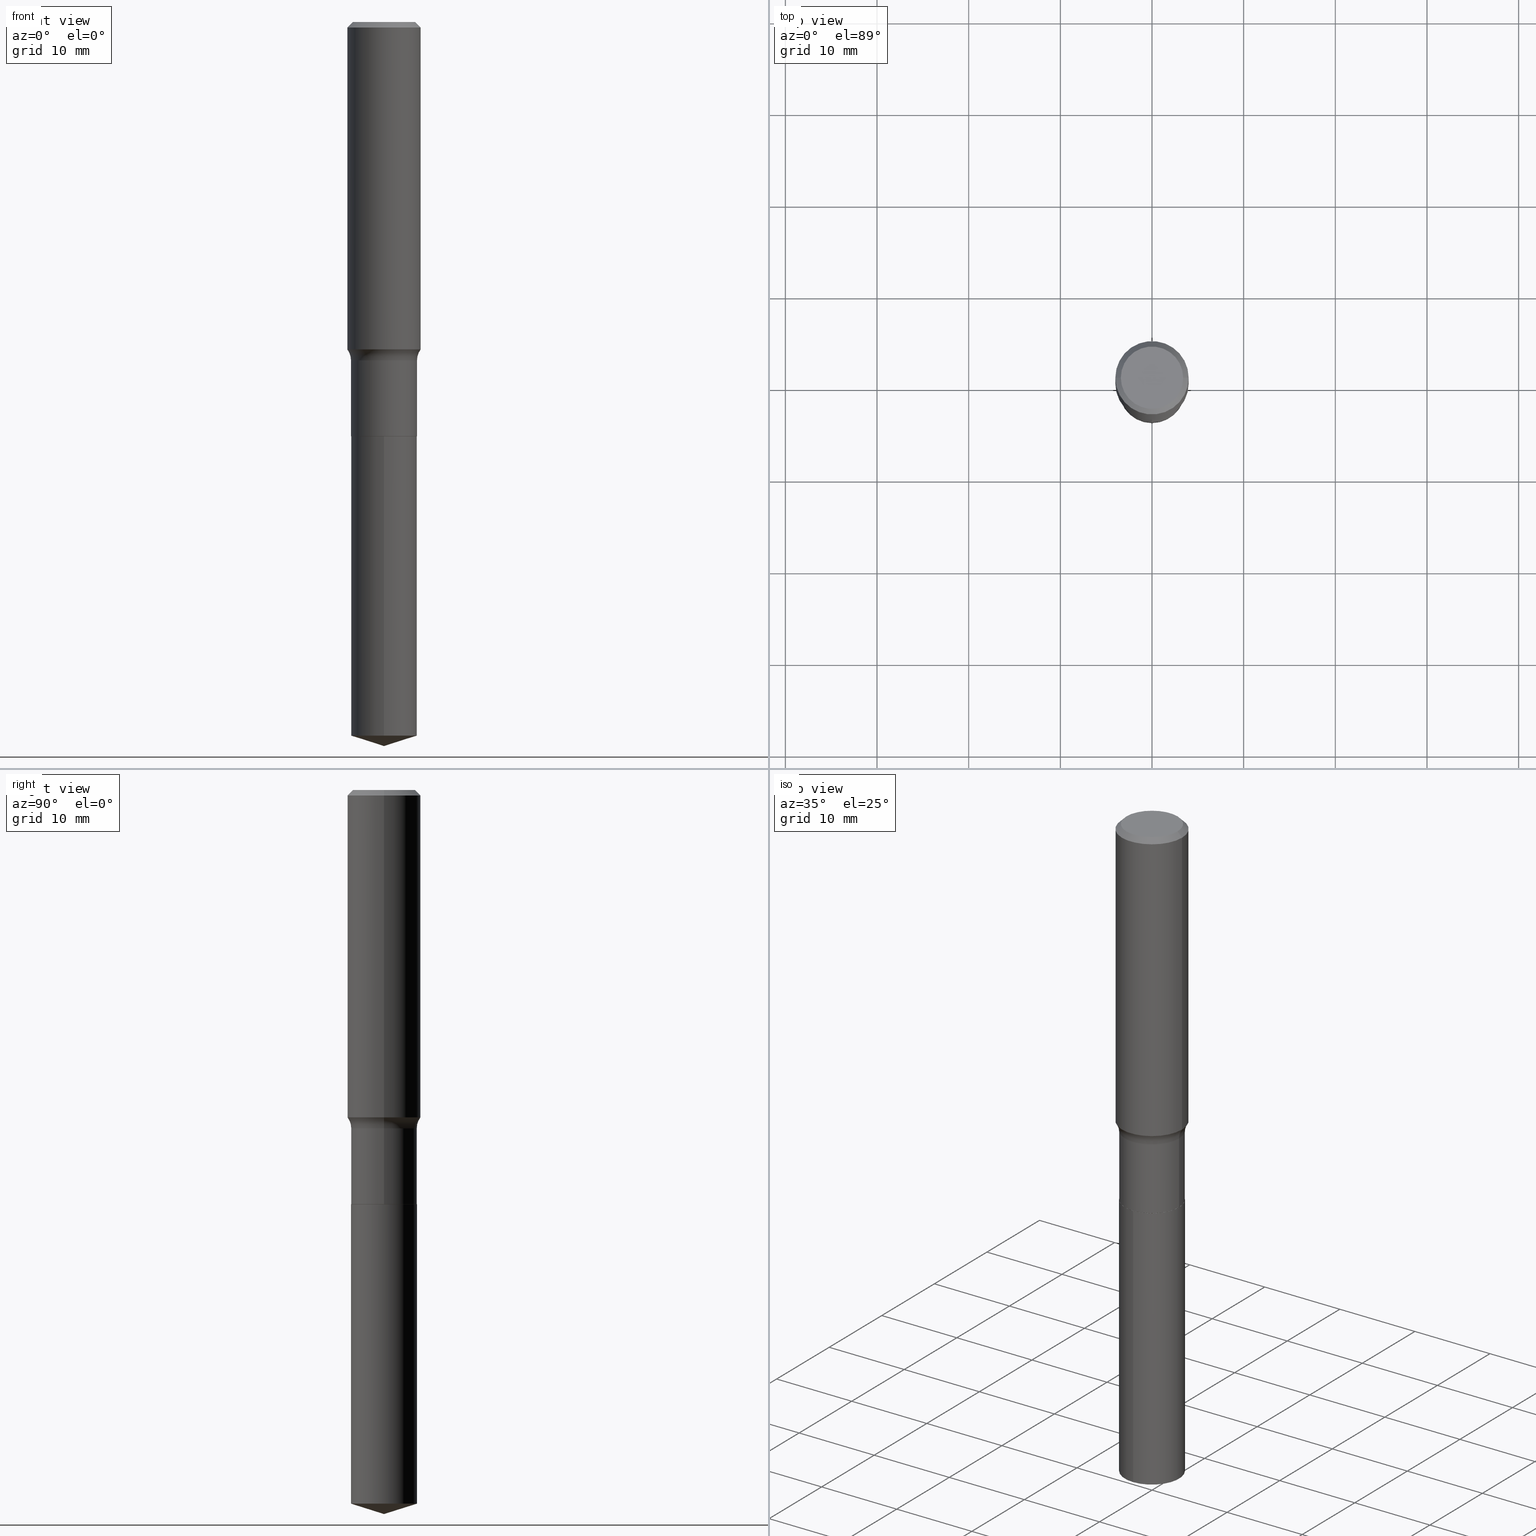
[diagram: canonical four-view strip — front | top / right | iso, engineering-drawing reading convention]
A machine part, canonical four-view strip (front | top / right | iso — engineering-drawing reading convention). The complete STEP part file that produces these views, byte-faithful:
ISO-10303-21;
HEADER;
FILE_DESCRIPTION (( 'STEP AP203' ),
    '1' );
FILE_NAME ('63761.STEP',
    '2024-04-19T15:08:15',
    ( '' ),
    ( '' ),
    'SwSTEP 2.0',
    'SolidWorks 2023',
    '' );
FILE_SCHEMA (( 'CONFIG_CONTROL_DESIGN' ));
ENDSEC;

DATA;
#1 = VERTEX_POINT ( 'NONE', #218 ) ;
#2 = FACE_OUTER_BOUND ( 'NONE', #106, .T. ) ;
#3 = VERTEX_POINT ( 'NONE', #248 ) ;
#4 = VECTOR ( 'NONE', #241, 39.37007874015748854 ) ;
#5 = CARTESIAN_POINT ( 'NONE',  ( 4.351711740606450879E-29, -6.213091042471377326E-15, -1.779499999999999860 ) ) ;
#6 = VERTEX_POINT ( 'NONE', #63 ) ;
#7 = ORIENTED_EDGE ( 'NONE', *, *, #360, .T. ) ;
#8 = PRODUCT_RELATED_PRODUCT_CATEGORY ( 'detail', '', ( #225 ) ) ;
#9 = DIRECTION ( 'NONE',  ( -1.000000000000000000, 6.982962677686265922E-15, 0.000000000000000000 ) ) ;
#10 = EDGE_CURVE ( 'NONE', #3, #379, #303, .T. ) ;
#11 = DIRECTION ( 'NONE',  ( 1.000000000000000000, -6.982962677686268288E-15, 0.000000000000000000 ) ) ;
#12 = AXIS2_PLACEMENT_3D ( 'NONE', #373, #444, #188 ) ;
#13 = ORIENTED_EDGE ( 'NONE', *, *, #88, .T. ) ;
#14 = LENGTH_MEASURE_WITH_UNIT ( LENGTH_MEASURE( 0.02539999999999999897 ), #235 );
#15 = AXIS2_PLACEMENT_3D ( 'NONE', #425, #279, #432 ) ;
#16 = SECURITY_CLASSIFICATION ( '', '', #405 ) ;
#17 = ORIENTED_EDGE ( 'NONE', *, *, #374, .F. ) ;
#18 = DIRECTION ( 'NONE',  ( -2.445468806185136597E-29, 3.491481338843145583E-15, 1.000000000000000000 ) ) ;
#19 = LINE ( 'NONE', #359, #4 ) ;
#20 = MANIFOLD_SOLID_BREP ( 'Body-Move/Copy2[1]', #136 ) ;
#21 = CARTESIAN_POINT ( 'NONE',  ( -1.002970424325033577E-46, 1.431975951230896486E-32, 4.101342130344485961E-18 ) ) ;
#22 = CIRCLE ( 'NONE', #228, 0.07800000000000002764 ) ;
#23 = PERSON_AND_ORGANIZATION ( #468, #415 ) ;
#24 =( CONVERSION_BASED_UNIT ( 'INCH', #14 ) LENGTH_UNIT ( ) NAMED_UNIT ( #71 ) );
#25 = DIRECTION ( 'NONE',  ( -2.445468806185136597E-29, 3.491481338843145583E-15, 1.000000000000000000 ) ) ;
#26 = PERSON_AND_ORGANIZATION_ROLE ( 'design_supplier' ) ;
#27 = DIRECTION ( 'NONE',  ( 1.000000000000000000, -6.982962677686270655E-15, 0.000000000000000000 ) ) ;
#28 = AXIS2_PLACEMENT_3D ( 'NONE', #170, #314, #428 ) ;
#29 = ORIENTED_EDGE ( 'NONE', *, *, #334, .T. ) ;
#30 = APPROVAL_ROLE ( '' ) ;
#31 = CARTESIAN_POINT ( 'NONE',  ( 7.605919099686368844E-29, -1.085917577814005911E-14, -3.110199999999999854 ) ) ;
#32 = ADVANCED_FACE ( 'NONE', ( #222 ), #439, .T. ) ;
#33 = APPROVAL_ROLE ( '' ) ;
#34 = CARTESIAN_POINT ( 'NONE',  ( 0.000000000000000000, 0.000000000000000000, 0.000000000000000000 ) ) ;
#35 = AXIS2_PLACEMENT_3D ( 'NONE', #65, #441, #27 ) ;
#36 = DIRECTION ( 'NONE',  ( -2.445468806185136597E-29, 3.491481338843145583E-15, 1.000000000000000000 ) ) ;
#37 = CIRCLE ( 'NONE', #315, 0.07800000000000002764 ) ;
#38 = ORIENTED_EDGE ( 'NONE', *, *, #122, .F. ) ;
#39 = CARTESIAN_POINT ( 'NONE',  ( 0.000000000000000000, 0.000000000000000000, 0.000000000000000000 ) ) ;
#40 = ORIENTED_EDGE ( 'NONE', *, *, #59, .F. ) ;
#41 = CARTESIAN_POINT ( 'NONE',  ( 1.007194327940016469E-15, 0.1417499999999892457, -3.065506396676405121 ) ) ;
#42 = CONICAL_SURFACE ( 'NONE', #412, 0.1412499999999999867, 0.7853981633978068810 ) ;
#43 = ORIENTED_EDGE ( 'NONE', *, *, #267, .T. ) ;
#44 = DIRECTION ( 'NONE',  ( -2.445468806185136597E-29, 3.491481338843145583E-15, 1.000000000000000000 ) ) ;
#45 = ADVANCED_FACE ( 'NONE', ( #375 ), #403, .F. ) ;
#46 = ORIENTED_EDGE ( 'NONE', *, *, #105, .F. ) ;
#47 = CIRCLE ( 'NONE', #199, 0.1338749999999999940 ) ;
#48 = CARTESIAN_POINT ( 'NONE',  ( 7.605754411510306594E-29, -1.085940957089515633E-14, -3.110199999999999854 ) ) ;
#49 = APPROVAL_PERSON_ORGANIZATION ( #23, #292, #30 ) ;
#50 = EDGE_LOOP ( 'NONE', ( #43, #29 ) ) ;
#51 = ADVANCED_FACE ( 'NONE', ( #69 ), #448, .F. ) ;
#52 = LINE ( 'NONE', #236, #233 ) ;
#53 = FACE_OUTER_BOUND ( 'NONE', #298, .T. ) ;
#54 = CYLINDRICAL_SURFACE ( 'NONE', #397, 0.1417499999999999594 ) ;
#55 = CIRCLE ( 'NONE', #237, 0.1575000000000000011 ) ;
#56 = CARTESIAN_POINT ( 'NONE',  ( 3.439553501887494675E-29, -4.910770824562959789E-15, -1.406500664898319819 ) ) ;
#57 = CARTESIAN_POINT ( 'NONE',  ( -0.1575000000000001676, -3.791666015740801396E-15, -1.406500664898319819 ) ) ;
#58 = VECTOR ( 'NONE', #153, 39.37007874015748143 ) ;
#59 = EDGE_CURVE ( 'NONE', #260, #270, #101, .T. ) ;
#60 =( NAMED_UNIT ( * ) PLANE_ANGLE_UNIT ( ) SI_UNIT ( $, .RADIAN. ) );
#61 = APPROVAL_PERSON_ORGANIZATION ( #295, #189, #331 ) ;
#62 = APPROVAL_STATUS ( 'not_yet_approved' ) ;
#63 = CARTESIAN_POINT ( 'NONE',  ( 0.1417499999999999594, -6.064703085570540056E-15, -1.453500000000000014 ) ) ;
#64 = EDGE_LOOP ( 'NONE', ( #38, #420 ) ) ;
#65 = CARTESIAN_POINT ( 'NONE',  ( 4.351711740606449758E-29, -6.213091042471375748E-15, -1.779499999999999638 ) ) ;
#66 = ORIENTED_EDGE ( 'NONE', *, *, #131, .T. ) ;
#67 = CALENDAR_DATE ( 2024, 19, 4 ) ;
#68 = CC_DESIGN_PERSON_AND_ORGANIZATION_ASSIGNMENT ( #474, #446, ( #238 ) ) ;
#69 = FACE_OUTER_BOUND ( 'NONE', #344, .T. ) ;
#70 = COORDINATED_UNIVERSAL_TIME_OFFSET ( 5, 0, .BEHIND. ) ;
#71 = DIMENSIONAL_EXPONENTS ( 1.000000000000000000, 0.000000000000000000, 0.000000000000000000, 0.000000000000000000, 0.000000000000000000, 0.000000000000000000, 0.000000000000000000 ) ;
#72 = CARTESIAN_POINT ( 'NONE',  ( 4.351711740606449758E-29, -6.213091042471375748E-15, -1.779499999999999638 ) ) ;
#73 = LINE ( 'NONE', #337, #364 ) ;
#74 = VECTOR ( 'NONE', #224, 39.37007874015748143 ) ;
#75 = DIRECTION ( 'NONE',  ( 1.000000000000000000, -6.982962677686266711E-15, 4.876176775795935793E-29 ) ) ;
#76 = APPROVAL_PERSON_ORGANIZATION ( #328, #99, #33 ) ;
#77 = ORIENTED_EDGE ( 'NONE', *, *, #255, .F. ) ;
#78 = DIRECTION ( 'NONE',  ( 1.000000000000000000, -6.982962677686266711E-15, 4.876170806578254279E-29 ) ) ;
#79 = ORIENTED_EDGE ( 'NONE', *, *, #430, .T. ) ;
#80 = CARTESIAN_POINT ( 'NONE',  ( 4.351711740606450879E-29, -6.213091042471377326E-15, -1.779499999999999860 ) ) ;
#81 = DIRECTION ( 'NONE',  ( -6.982962677686266711E-15, -1.000000000000000000, 3.500519750498693388E-15 ) ) ;
#82 = EDGE_CURVE ( 'NONE', #326, #318, #150, .T. ) ;
#83 = ORIENTED_EDGE ( 'NONE', *, *, #300, .F. ) ;
#84 = AXIS2_PLACEMENT_3D ( 'NONE', #306, #126, #197 ) ;
#85 = DIRECTION ( 'NONE',  ( -6.982962677686265133E-15, -1.000000000000000000, 3.854459250319948630E-15 ) ) ;
#86 = ORIENTED_EDGE ( 'NONE', *, *, #59, .T. ) ;
#87 = DIRECTION ( 'NONE',  ( 1.000000000000000000, -6.982962677686268288E-15, 0.000000000000000000 ) ) ;
#88 = EDGE_CURVE ( 'NONE', #379, #264, #293, .T. ) ;
#89 = VECTOR ( 'NONE', #179, 39.37007874015748143 ) ;
#90 = DIRECTION ( 'NONE',  ( -2.445468806185136597E-29, 3.491481338843145583E-15, 1.000000000000000000 ) ) ;
#91 = DIRECTION ( 'NONE',  ( 1.000000000000000000, -6.982962677686265922E-15, 0.000000000000000000 ) ) ;
#92 = CIRCLE ( 'NONE', #307, 0.1417499999999999594 ) ;
#93 = CARTESIAN_POINT ( 'NONE',  ( -9.898349595619846349E-16, -0.1417500000000062044, -1.779499999999999416 ) ) ;
#94 = ADVANCED_FACE ( 'NONE', ( #184 ), #214, .T. ) ;
#95 = VERTEX_POINT ( 'NONE', #256 ) ;
#96 = ORIENTED_EDGE ( 'NONE', *, *, #244, .F. ) ;
#97 = DIRECTION ( 'NONE',  ( -6.982962677686266711E-15, -1.000000000000000000, 3.491481338843145583E-15 ) ) ;
#98 = AXIS2_PLACEMENT_3D ( 'NONE', #329, #475, #144 ) ;
#99 = APPROVAL ( #62, 'UNSPECIFIED' ) ;
#100 = DESIGN_CONTEXT ( 'detailed design', #213, 'design' ) ;
#101 = LINE ( 'NONE', #31, #74 ) ;
#102 = VECTOR ( 'NONE', #319, 39.37007874015748143 ) ;
#103 = COORDINATED_UNIVERSAL_TIME_OFFSET ( 5, 0, .BEHIND. ) ;
#104 = CARTESIAN_POINT ( 'NONE',  ( 0.000000000000000000, 0.000000000000000000, 0.000000000000000000 ) ) ;
#105 = EDGE_CURVE ( 'NONE', #1, #376, #73, .T. ) ;
#106 = EDGE_LOOP ( 'NONE', ( #77, #473, #266, #96 ) ) ;
#107 = CALENDAR_DATE ( 2024, 19, 4 ) ;
#108 = DIRECTION ( 'NONE',  ( -2.445422934702046879E-29, 3.491547029417772777E-15, 1.000000000000000000 ) ) ;
#109 = CIRCLE ( 'NONE', #338, 0.1417499999999999594 ) ;
#110 = DATE_TIME_ROLE ( 'creation_date' ) ;
#111 = DIRECTION ( 'NONE',  ( -2.445468806185136597E-29, 3.491481338843145583E-15, 1.000000000000000000 ) ) ;
#112 = CONICAL_SURFACE ( 'NONE', #28, 0.1575000000000000011, 0.7853981633974449483 ) ;
#113 = DIRECTION ( 'NONE',  ( -2.445468806185136597E-29, 3.491481338843145583E-15, 1.000000000000000000 ) ) ;
#114 = ADVANCED_FACE ( 'NONE', ( #482 ), #42, .T. ) ;
#115 = ORIENTED_EDGE ( 'NONE', *, *, #122, .T. ) ;
#116 = CYLINDRICAL_SURFACE ( 'NONE', #257, 0.1417499999999999871 ) ;
#117 = DIRECTION ( 'NONE',  ( -2.445422934702046879E-29, 3.491547029417772777E-15, 1.000000000000000000 ) ) ;
#118 = CC_DESIGN_SECURITY_CLASSIFICATION ( #16, ( #325 ) ) ;
#119 = EDGE_LOOP ( 'NONE', ( #393, #133, #492, #324 ) ) ;
#120 = PLANE ( 'NONE',  #247 ) ;
#121 = ORIENTED_EDGE ( 'NONE', *, *, #174, .F. ) ;
#122 = EDGE_CURVE ( 'NONE', #1, #483, #252, .T. ) ;
#123 = CARTESIAN_POINT ( 'NONE',  ( 7.605754411510306594E-29, -1.085940957089515633E-14, -3.110199999999999854 ) ) ;
#124 = ORIENTED_EDGE ( 'NONE', *, *, #211, .F. ) ;
#125 = CIRCLE ( 'NONE', #98, 0.1575000000000000011 ) ;
#126 = DIRECTION ( 'NONE',  ( -2.445422934702046879E-29, 3.491547029417772777E-15, 1.000000000000000000 ) ) ;
#127 = ORIENTED_EDGE ( 'NONE', *, *, #186, .F. ) ;
#128 = CONICAL_SURFACE ( 'NONE', #84, 124.8659371009154597, 1.265363707695892570 ) ;
#129 = DIRECTION ( 'NONE',  ( -1.000000000000000000, 7.105427357601001859E-15, 0.000000000000000000 ) ) ;
#130 = CC_DESIGN_APPROVAL ( #99, ( #238 ) ) ;
#131 = EDGE_CURVE ( 'NONE', #456, #383, #486, .T. ) ;
#132 = LINE ( 'NONE', #275, #429 ) ;
#133 = ORIENTED_EDGE ( 'NONE', *, *, #349, .F. ) ;
#134 = ORIENTED_EDGE ( 'NONE', *, *, #131, .F. ) ;
#135 = CARTESIAN_POINT ( 'NONE',  ( 3.554488909790095658E-29, -5.074868126008511245E-15, -1.453500000000000014 ) ) ;
#136 = CLOSED_SHELL ( 'NONE', ( #220, #207, #161, #232, #166 ) ) ;
#137 = DIRECTION ( 'NONE',  ( -2.445468806185136597E-29, 3.491481338843145583E-15, 1.000000000000000000 ) ) ;
#138 = AXIS2_PLACEMENT_3D ( 'NONE', #419, #36, #78 ) ;
#139 = EDGE_CURVE ( 'NONE', #6, #95, #109, .T. ) ;
#140 = VERTEX_POINT ( 'NONE', #366 ) ;
#141 = CALENDAR_DATE ( 2024, 19, 4 ) ;
#142 = DIRECTION ( 'NONE',  ( 1.000000000000000000, -6.982962677686270655E-15, 0.000000000000000000 ) ) ;
#143 = COORDINATED_UNIVERSAL_TIME_OFFSET ( 5, 0, .BEHIND. ) ;
#144 = DIRECTION ( 'NONE',  ( 1.000000000000000000, -6.982962677686265922E-15, 0.000000000000000000 ) ) ;
#145 = EDGE_CURVE ( 'NONE', #318, #264, #125, .T. ) ;
#146 = APPROVAL_DATE_TIME ( #243, #292 ) ;
#147 = CARTESIAN_POINT ( 'NONE',  ( -0.1575000000000000566, 1.119104808822158195E-15, -7.747322767151479787E-30 ) ) ;
#148 = ORIENTED_EDGE ( 'NONE', *, *, #139, .F. ) ;
#149 = APPROVAL_DATE_TIME ( #254, #99 ) ;
#150 = LINE ( 'NONE', #408, #89 ) ;
#151 = DATE_TIME_ROLE ( 'classification_date' ) ;
#152 = ADVANCED_FACE ( 'NONE', ( #402 ), #242, .T. ) ;
#153 = DIRECTION ( 'NONE',  ( -2.445422934702046879E-29, 3.491547029417773171E-15, 1.000000000000000000 ) ) ;
#154 = AXIS2_PLACEMENT_3D ( 'NONE', #311, #229, #81 ) ;
#155 = DIRECTION ( 'NONE',  ( -2.445468806185136877E-29, 3.491481338843145188E-15, 1.000000000000000000 ) ) ;
#156 = ORIENTED_EDGE ( 'NONE', *, *, #466, .F. ) ;
#157 = DIRECTION ( 'NONE',  ( -6.982962677686265133E-15, -1.000000000000000000, 3.854459250319948630E-15 ) ) ;
#158 = EDGE_LOOP ( 'NONE', ( #301, #350, #66, #490 ) ) ;
#159 = EDGE_CURVE ( 'NONE', #270, #456, #458, .T. ) ;
#160 = FACE_OUTER_BOUND ( 'NONE', #304, .T. ) ;
#161 = ADVANCED_FACE ( 'NONE', ( #406 ), #204, .T. ) ;
#162 = CIRCLE ( 'NONE', #330, 0.1417499999999999871 ) ;
#163 = DIRECTION ( 'NONE',  ( 1.000000000000000000, -6.982962677686265922E-15, 4.876176775795935793E-29 ) ) ;
#164 = ORIENTED_EDGE ( 'NONE', *, *, #447, .T. ) ;
#165 = DIRECTION ( 'NONE',  ( 1.000000000000000000, -6.982962677686268288E-15, 0.000000000000000000 ) ) ;
#166 = ADVANCED_FACE ( 'NONE', ( #268 ), #120, .F. ) ;
#167 = DIRECTION ( 'NONE',  ( -6.982962677686265133E-15, -1.000000000000000000, 3.854459250319948630E-15 ) ) ;
#168 = ORIENTED_EDGE ( 'NONE', *, *, #436, .T. ) ;
#169 = DIRECTION ( 'NONE',  ( 1.000000000000000000, -6.982962677686266711E-15, 4.876176775795935793E-29 ) ) ;
#170 = CARTESIAN_POINT ( 'NONE',  ( 5.777420054612421104E-31, -8.248624663016984002E-17, -0.02362500000000014588 ) ) ;
#171 = AXIS2_PLACEMENT_3D ( 'NONE', #34, #259, #296 ) ;
#172 = DIRECTION ( 'NONE',  ( -2.445422934702046879E-29, 3.491547029417772777E-15, 1.000000000000000000 ) ) ;
#173 = VERTEX_POINT ( 'NONE', #299 ) ;
#174 = EDGE_CURVE ( 'NONE', #414, #95, #413, .T. ) ;
#175 = CARTESIAN_POINT ( 'NONE',  ( 4.351711740606450879E-29, -6.213091042471377326E-15, -1.779499999999999860 ) ) ;
#176 = CONICAL_SURFACE ( 'NONE', #476, 0.1575000000000000011, 0.7853981633974449483 ) ;
#177 = UNCERTAINTY_MEASURE_WITH_UNIT (LENGTH_MEASURE( 1.000000000000000082E-05 ), #24, 'distance_accuracy_value', 'NONE');
#178 = COORDINATED_UNIVERSAL_TIME_OFFSET ( 5, 0, .BEHIND. ) ;
#179 = DIRECTION ( 'NONE',  ( 0.7071067811865451302, -7.319954787623248157E-15, -0.7071067811865499042 ) ) ;
#180 = DIRECTION ( 'NONE',  ( 1.000000000000000000, -6.982962677686268288E-15, 0.000000000000000000 ) ) ;
#181 = PERSON_AND_ORGANIZATION ( #468, #415 ) ;
#182 = CARTESIAN_POINT ( 'NONE',  ( 7.496541277212469307E-29, -1.070324285659913330E-14, -3.065506396676404677 ) ) ;
#183 = CIRCLE ( 'NONE', #219, 0.1417499999999999594 ) ;
#184 = FACE_OUTER_BOUND ( 'NONE', #347, .T. ) ;
#185 = ADVANCED_BREP_SHAPE_REPRESENTATION ( '63761', ( #20, #355, #353 ), #284 ) ;
#186 = EDGE_CURVE ( 'NONE', #414, #376, #183, .T. ) ;
#187 = PERSON_AND_ORGANIZATION_ROLE ( 'classification_officer' ) ;
#188 = DIRECTION ( 'NONE',  ( -1.000000000000000000, 6.982962677686265922E-15, -4.876176775795935793E-29 ) ) ;
#189 = APPROVAL ( #361, 'UNSPECIFIED' ) ;
#190 = LINE ( 'NONE', #123, #445 ) ;
#191 = ORIENTED_EDGE ( 'NONE', *, *, #145, .F. ) ;
#192 = CARTESIAN_POINT ( 'NONE',  ( 4.351711740606449758E-29, -6.213091042471375748E-15, -1.779499999999999638 ) ) ;
#193 = ORIENTED_EDGE ( 'NONE', *, *, #255, .T. ) ;
#194 = CARTESIAN_POINT ( 'NONE',  ( 6.754999570529109047E-29, -2.771446083373637041E-15, -1.779499999999999860 ) ) ;
#195 = ADVANCED_FACE ( 'NONE', ( #2 ), #176, .T. ) ;
#196 = AXIS2_PLACEMENT_3D ( 'NONE', #480, #398, #472 ) ;
#197 = DIRECTION ( 'NONE',  ( -6.982962677686266711E-15, -1.000000000000000000, 3.500519750498693388E-15 ) ) ;
#198 = ORIENTED_EDGE ( 'NONE', *, *, #139, .T. ) ;
#199 = AXIS2_PLACEMENT_3D ( 'NONE', #21, #394, #389 ) ;
#200 = DIRECTION ( 'NONE',  ( -2.438088387897960049E-29, 3.491481338843145188E-15, 1.000000000000000000 ) ) ;
#201 = CARTESIAN_POINT ( 'NONE',  ( 0.1575000000000000011, -1.182302868365756679E-15, -0.02362500000000014588 ) ) ;
#202 = AXIS2_PLACEMENT_3D ( 'NONE', #104, #283, #250 ) ;
#203 = ORIENTED_EDGE ( 'NONE', *, *, #380, .F. ) ;
#204 = CONICAL_SURFACE ( 'NONE', #154, 124.8659371009154597, 1.265363707695892570 ) ;
#205 = DIRECTION ( 'NONE',  ( -2.445468806185136877E-29, 3.491481338843145188E-15, 1.000000000000000000 ) ) ;
#206 = CARTESIAN_POINT ( 'NONE',  ( -0.1412499999999999867, -5.206800201036123918E-15, -1.779499999999999638 ) ) ;
#207 = ADVANCED_FACE ( 'NONE', ( #340 ), #128, .T. ) ;
#208 = CARTESIAN_POINT ( 'NONE',  ( -0.2197499999999999454, -3.513450464175691869E-15, -1.453500000000000014 ) ) ;
#209 = AXIS2_PLACEMENT_3D ( 'NONE', #56, #18, #11 ) ;
#210 = PRODUCT_DEFINITION_SHAPE ( 'NONE', 'NONE',  #238 ) ;
#211 = EDGE_CURVE ( 'NONE', #456, #270, #162, .T. ) ;
#212 = SHAPE_DEFINITION_REPRESENTATION ( #210, #185 ) ;
#213 = APPLICATION_CONTEXT ( 'configuration controlled 3d designs of mechanical parts and assemblies' ) ;
#214 = CYLINDRICAL_SURFACE ( 'NONE', #202, 0.1575000000000000566 ) ;
#215 = EDGE_LOOP ( 'NONE', ( #276, #289, #305, #127 ) ) ;
#216 = PERSON_AND_ORGANIZATION_ROLE ( 'design_owner' ) ;
#217 = DIRECTION ( 'NONE',  ( -2.445468806185136597E-29, 3.491481338843145583E-15, 1.000000000000000000 ) ) ;
#218 = CARTESIAN_POINT ( 'NONE',  ( 0.1412499999999999867, -7.199434520694561552E-15, -1.779499999999999638 ) ) ;
#219 = AXIS2_PLACEMENT_3D ( 'NONE', #302, #44, #165 ) ;
#220 = ADVANCED_FACE ( 'NONE', ( #160 ), #116, .T. ) ;
#221 = PERSON_AND_ORGANIZATION_ROLE ( 'creator' ) ;
#222 = FACE_OUTER_BOUND ( 'NONE', #370, .T. ) ;
#223 = CC_DESIGN_DATE_AND_TIME_ASSIGNMENT ( #485, #151, ( #16 ) ) ;
#224 = DIRECTION ( 'NONE',  ( 6.776566513254258926E-15, 0.9537169507482290420, 0.3007057995042663467 ) ) ;
#225 = PRODUCT ( '63761', '63761', '', ( #246 ) ) ;
#226 = ORIENTED_EDGE ( 'NONE', *, *, #409, .F. ) ;
#227 = PLANE ( 'NONE',  #377 ) ;
#228 = AXIS2_PLACEMENT_3D ( 'NONE', #426, #97, #87 ) ;
#229 = DIRECTION ( 'NONE',  ( -2.445422934702046879E-29, 3.491547029417772777E-15, 1.000000000000000000 ) ) ;
#230 = DIRECTION ( 'NONE',  ( -6.982962677686265133E-15, -1.000000000000000000, 3.854459250319948630E-15 ) ) ;
#231 = DIRECTION ( 'NONE',  ( -6.982962677686265133E-15, -1.000000000000000000, 3.854459250319948630E-15 ) ) ;
#232 = ADVANCED_FACE ( 'NONE', ( #345 ), #309, .T. ) ;
#233 = VECTOR ( 'NONE', #205, 39.37007874015748143 ) ;
#234 = CARTESIAN_POINT ( 'NONE',  ( 5.777420054612421104E-31, -8.248624663016984002E-17, -0.02362500000000014588 ) ) ;
#235 =( LENGTH_UNIT ( ) NAMED_UNIT ( * ) SI_UNIT ( $, .METRE. ) );
#236 = CARTESIAN_POINT ( 'NONE',  ( 0.1575000000000000566, -1.099816621735587480E-15, 7.679978421878602237E-30 ) ) ;
#237 = AXIS2_PLACEMENT_3D ( 'NONE', #352, #90, #91 ) ;
#238 = PRODUCT_DEFINITION ( 'UNKNOWN', '', #325, #100 ) ;
#239 = DIRECTION ( 'NONE',  ( 1.000000000000000000, -6.982962677686268288E-15, 0.000000000000000000 ) ) ;
#240 = ORIENTED_EDGE ( 'NONE', *, *, #10, .T. ) ;
#241 = DIRECTION ( 'NONE',  ( -0.7071067811868009256, 7.493145998871269239E-15, 0.7071067811862938868 ) ) ;
#242 = CONICAL_SURFACE ( 'NONE', #35, 0.1412499999999999867, 0.7853981633978068810 ) ;
#243 = DATE_AND_TIME ( #107, #460 ) ;
#244 = EDGE_CURVE ( 'NONE', #140, #264, #265, .T. ) ;
#245 = CIRCLE ( 'NONE', #407, 0.1417499999999999871 ) ;
#246 = MECHANICAL_CONTEXT ( 'NONE', #294, 'mechanical' ) ;
#247 = AXIS2_PLACEMENT_3D ( 'NONE', #262, #416, #450 ) ;
#248 = CARTESIAN_POINT ( 'NONE',  ( 0.1575000000000001676, -6.010587446298547269E-15, -1.406500664898319819 ) ) ;
#249 = DATE_AND_TIME ( #282, #287 ) ;
#250 = DIRECTION ( 'NONE',  ( 1.000000000000000000, -6.982962677686267499E-15, 4.876176775795936353E-29 ) ) ;
#251 = ORIENTED_EDGE ( 'NONE', *, *, #360, .F. ) ;
#252 = CIRCLE ( 'NONE', #320, 0.1412499999999999867 ) ;
#253 = DIRECTION ( 'NONE',  ( -6.982962677686265133E-15, -1.000000000000000000, 3.854459250319948630E-15 ) ) ;
#254 = DATE_AND_TIME ( #443, #488 ) ;
#255 = EDGE_CURVE ( 'NONE', #326, #140, #437, .T. ) ;
#256 = CARTESIAN_POINT ( 'NONE',  ( -0.1417499999999999594, -4.635912385965292401E-15, -1.453500000000000014 ) ) ;
#257 = AXIS2_PLACEMENT_3D ( 'NONE', #80, #117, #230 ) ;
#258 = CC_DESIGN_APPROVAL ( #292, ( #325 ) ) ;
#259 = DIRECTION ( 'NONE',  ( -2.445468806185136597E-29, 3.491481338843145583E-15, 1.000000000000000000 ) ) ;
#260 = VERTEX_POINT ( 'NONE', #48 ) ;
#261 = CYLINDRICAL_SURFACE ( 'NONE', #424, 0.1417499999999999594 ) ;
#262 = CARTESIAN_POINT ( 'NONE',  ( 4.351711740606450879E-29, -6.213091042471377326E-15, -1.779499999999999860 ) ) ;
#263 = VECTOR ( 'NONE', #489, 39.37007874015748143 ) ;
#264 = VERTEX_POINT ( 'NONE', #381 ) ;
#265 = LINE ( 'NONE', #346, #263 ) ;
#266 = ORIENTED_EDGE ( 'NONE', *, *, #145, .T. ) ;
#267 = EDGE_CURVE ( 'NONE', #383, #173, #245, .T. ) ;
#268 = FACE_OUTER_BOUND ( 'NONE', #50, .T. ) ;
#269 = ORIENTED_EDGE ( 'NONE', *, *, #159, .F. ) ;
#270 = VERTEX_POINT ( 'NONE', #41 ) ;
#271 = FACE_OUTER_BOUND ( 'NONE', #455, .T. ) ;
#272 = CC_DESIGN_PERSON_AND_ORGANIZATION_ASSIGNMENT ( #396, #187, ( #16 ) ) ;
#273 = AXIS2_PLACEMENT_3D ( 'NONE', #135, #392, #470 ) ;
#274 = LOCAL_TIME ( 11, 8, 15.00000000000000000, #103 ) ;
#275 = CARTESIAN_POINT ( 'NONE',  ( 0.1417499999999999594, -9.898349595620280222E-16, 6.911980579690737389E-30 ) ) ;
#276 = ORIENTED_EDGE ( 'NONE', *, *, #323, .F. ) ;
#277 = DIRECTION ( 'NONE',  ( 7.105427357601001859E-15, 1.000000000000000000, -3.491481338843145583E-15 ) ) ;
#278 = CIRCLE ( 'NONE', #15, 0.1417499999999999594 ) ;
#279 = DIRECTION ( 'NONE',  ( -2.445468806185136597E-29, 3.491481338843145583E-15, 1.000000000000000000 ) ) ;
#280 = FACE_OUTER_BOUND ( 'NONE', #411, .T. ) ;
#281 = ADVANCED_FACE ( 'NONE', ( #453 ), #227, .F. ) ;
#282 = CALENDAR_DATE ( 2024, 19, 4 ) ;
#283 = DIRECTION ( 'NONE',  ( -2.445468806185136597E-29, 3.491481338843145583E-15, 1.000000000000000000 ) ) ;
#284 =( GEOMETRIC_REPRESENTATION_CONTEXT ( 3 ) GLOBAL_UNCERTAINTY_ASSIGNED_CONTEXT ( ( #177 ) ) GLOBAL_UNIT_ASSIGNED_CONTEXT ( ( #24, #60, #481 ) ) REPRESENTATION_CONTEXT ( 'NONE', 'WORKASPACE' ) );
#285 = EDGE_LOOP ( 'NONE', ( #83, #86, #124 ) ) ;
#286 = PERSON_AND_ORGANIZATION ( #468, #415 ) ;
#287 = LOCAL_TIME ( 11, 8, 15.00000000000000000, #143 ) ;
#288 = DIRECTION ( 'NONE',  ( 1.000000000000000000, -6.982962677686268288E-15, 0.000000000000000000 ) ) ;
#289 = ORIENTED_EDGE ( 'NONE', *, *, #317, .T. ) ;
#290 = APPLICATION_PROTOCOL_DEFINITION ( 'international standard', 'config_control_design', 1994, #294 ) ;
#291 = DIRECTION ( 'NONE',  ( -2.445468806185136877E-29, 3.491481338843145188E-15, 1.000000000000000000 ) ) ;
#292 = APPROVAL ( #401, 'UNSPECIFIED' ) ;
#293 = LINE ( 'NONE', #147, #442 ) ;
#294 = APPLICATION_CONTEXT ( 'configuration controlled 3d designs of mechanical parts and assemblies' ) ;
#295 = PERSON_AND_ORGANIZATION ( #468, #415 ) ;
#296 = DIRECTION ( 'NONE',  ( 1.000000000000000000, -6.982962677686267499E-15, 4.876176775795936353E-29 ) ) ;
#297 = TOROIDAL_SURFACE ( 'NONE', #273, 0.2197499999999999454, 0.07800000000000002764 ) ;
#298 = EDGE_LOOP ( 'NONE', ( #121, #464, #404, #17 ) ) ;
#299 = CARTESIAN_POINT ( 'NONE',  ( 1.007194327940016864E-15, 0.1417499999999937699, -1.779500000000000526 ) ) ;
#300 = EDGE_CURVE ( 'NONE', #260, #456, #190, .T. ) ;
#301 = ORIENTED_EDGE ( 'NONE', *, *, #447, .F. ) ;
#302 = CARTESIAN_POINT ( 'NONE',  ( 4.350489006203358077E-29, -6.211345301801956611E-15, -1.779000000000000137 ) ) ;
#303 = CIRCLE ( 'NONE', #358, 0.1575000000000001399 ) ;
#304 = EDGE_LOOP ( 'NONE', ( #388, #164, #417, #134 ) ) ;
#305 = ORIENTED_EDGE ( 'NONE', *, *, #105, .T. ) ;
#306 = CARTESIAN_POINT ( 'NONE',  ( -8.867065745239212060E-28, 1.266031887986230575E-13, 36.25987874015748247 ) ) ;
#307 = AXIS2_PLACEMENT_3D ( 'NONE', #357, #137, #239 ) ;
#308 = ADVANCED_FACE ( 'NONE', ( #271 ), #261, .T. ) ;
#309 = CYLINDRICAL_SURFACE ( 'NONE', #368, 0.1417499999999999871 ) ;
#310 = CC_DESIGN_PERSON_AND_ORGANIZATION_ASSIGNMENT ( #372, #26, ( #325 ) ) ;
#311 = CARTESIAN_POINT ( 'NONE',  ( -8.867065745239212060E-28, 1.266031887986230575E-13, 36.25987874015748247 ) ) ;
#312 = AXIS2_PLACEMENT_3D ( 'NONE', #182, #108, #253 ) ;
#313 = ORIENTED_EDGE ( 'NONE', *, *, #436, .F. ) ;
#314 = DIRECTION ( 'NONE',  ( 2.445468806185136597E-29, -3.491481338843145583E-15, -1.000000000000000000 ) ) ;
#315 = AXIS2_PLACEMENT_3D ( 'NONE', #208, #277, #129 ) ;
#316 = CARTESIAN_POINT ( 'NONE',  ( 0.1338749999999999940, -1.040731925365424925E-15, 4.101342130351393887E-18 ) ) ;
#317 = EDGE_CURVE ( 'NONE', #483, #1, #348, .T. ) ;
#318 = VERTEX_POINT ( 'NONE', #201 ) ;
#319 = DIRECTION ( 'NONE',  ( -2.445422934702046879E-29, 3.491547029417773171E-15, 1.000000000000000000 ) ) ;
#320 = AXIS2_PLACEMENT_3D ( 'NONE', #72, #113, #142 ) ;
#321 = DIRECTION ( 'NONE',  ( -2.445468806185136597E-29, 3.491481338843145583E-15, 1.000000000000000000 ) ) ;
#322 = AXIS2_PLACEMENT_3D ( 'NONE', #192, #343, #491 ) ;
#323 = EDGE_CURVE ( 'NONE', #483, #414, #19, .T. ) ;
#324 = ORIENTED_EDGE ( 'NONE', *, *, #409, .T. ) ;
#325 = PRODUCT_DEFINITION_FORMATION_WITH_SPECIFIED_SOURCE ( 'ANY', '', #225, .NOT_KNOWN. ) ;
#326 = VERTEX_POINT ( 'NONE', #316 ) ;
#327 = DIRECTION ( 'NONE',  ( 0.7071067811868009256, -2.468850131084911578E-15, 0.7071067811862938868 ) ) ;
#328 = PERSON_AND_ORGANIZATION ( #468, #415 ) ;
#329 = CARTESIAN_POINT ( 'NONE',  ( 5.777420054612421104E-31, -8.248624663016984002E-17, -0.02362500000000014588 ) ) ;
#330 = AXIS2_PLACEMENT_3D ( 'NONE', #378, #384, #85 ) ;
#331 = APPROVAL_ROLE ( '' ) ;
#332 = CC_DESIGN_APPROVAL ( #189, ( #16 ) ) ;
#333 = DIRECTION ( 'NONE',  ( 1.000000000000000000, -6.982962677686270655E-15, 0.000000000000000000 ) ) ;
#334 = EDGE_CURVE ( 'NONE', #173, #383, #487, .T. ) ;
#335 = EDGE_LOOP ( 'NONE', ( #203, #367, #342, #251 ) ) ;
#336 = DIRECTION ( 'NONE',  ( 0.000000000000000000, 0.000000000000000000, 1.000000000000000000 ) ) ;
#337 = CARTESIAN_POINT ( 'NONE',  ( 0.1412499999999999867, -7.199434520694561552E-15, -1.779499999999999638 ) ) ;
#338 = AXIS2_PLACEMENT_3D ( 'NONE', #410, #25, #180 ) ;
#339 = CARTESIAN_POINT ( 'NONE',  ( 4.351711740606449758E-29, -6.213091042471375748E-15, -1.779499999999999638 ) ) ;
#340 = FACE_OUTER_BOUND ( 'NONE', #285, .T. ) ;
#341 = VECTOR ( 'NONE', #155, 39.37007874015748143 ) ;
#342 = ORIENTED_EDGE ( 'NONE', *, *, #374, .T. ) ;
#343 = DIRECTION ( 'NONE',  ( -2.445468806185136597E-29, 3.491481338843145583E-15, 1.000000000000000000 ) ) ;
#344 = EDGE_LOOP ( 'NONE', ( #382, #193 ) ) ;
#345 = FACE_OUTER_BOUND ( 'NONE', #158, .T. ) ;
#346 = CARTESIAN_POINT ( 'NONE',  ( -0.1575000000000000011, 1.017330375105417098E-15, -0.02362500000000014588 ) ) ;
#347 = EDGE_LOOP ( 'NONE', ( #400, #423, #168, #226 ) ) ;
#348 = CIRCLE ( 'NONE', #322, 0.1412499999999999867 ) ;
#349 = EDGE_CURVE ( 'NONE', #140, #326, #47, .T. ) ;
#350 = ORIENTED_EDGE ( 'NONE', *, *, #159, .T. ) ;
#351 = CARTESIAN_POINT ( 'NONE',  ( -0.1417499999999999594, 1.007194327939941725E-15, -6.972590490436327745E-30 ) ) ;
#352 = CARTESIAN_POINT ( 'NONE',  ( 5.777420054612421104E-31, -8.248624663016984002E-17, -0.02362500000000014588 ) ) ;
#353 = AXIS2_PLACEMENT_3D ( 'NONE', #440, #336, #362 ) ;
#354 = LINE ( 'NONE', #459, #102 ) ;
#355 = MANIFOLD_SOLID_BREP ( 'Body-Move/Copy2[2]', #433 ) ;
#356 = ORIENTED_EDGE ( 'NONE', *, *, #300, .T. ) ;
#357 = CARTESIAN_POINT ( 'NONE',  ( 3.554488909790095658E-29, -5.074868126008511245E-15, -1.453500000000000014 ) ) ;
#358 = AXIS2_PLACEMENT_3D ( 'NONE', #371, #111, #288 ) ;
#359 = CARTESIAN_POINT ( 'NONE',  ( -0.1412499999999999867, -5.209449428210234330E-15, -1.779499999999999638 ) ) ;
#360 = EDGE_CURVE ( 'NONE', #3, #6, #22, .T. ) ;
#361 = APPROVAL_STATUS ( 'not_yet_approved' ) ;
#362 = DIRECTION ( 'NONE',  ( 1.000000000000000000, 0.000000000000000000, 0.000000000000000000 ) ) ;
#363 = CARTESIAN_POINT ( 'NONE',  ( -9.898349595619846349E-16, -0.1417500000000062044, -1.779499999999999416 ) ) ;
#364 = VECTOR ( 'NONE', #327, 39.37007874015748854 ) ;
#365 = ADVANCED_FACE ( 'NONE', ( #53 ), #54, .T. ) ;
#366 = CARTESIAN_POINT ( 'NONE',  ( -0.1338749999999999940, 9.760872517903331886E-16, 4.101342130337804525E-18 ) ) ;
#367 = ORIENTED_EDGE ( 'NONE', *, *, #466, .T. ) ;
#368 = AXIS2_PLACEMENT_3D ( 'NONE', #386, #421, #231 ) ;
#369 = APPLICATION_PROTOCOL_DEFINITION ( 'international standard', 'config_control_design', 1994, #213 ) ;
#370 = EDGE_LOOP ( 'NONE', ( #240, #13, #191, #313 ) ) ;
#371 = CARTESIAN_POINT ( 'NONE',  ( 3.439553501887494675E-29, -4.910770824562959789E-15, -1.406500664898319819 ) ) ;
#372 = PERSON_AND_ORGANIZATION ( #468, #415 ) ;
#373 = CARTESIAN_POINT ( 'NONE',  ( -5.014852121625167883E-47, 7.159879756154482429E-33, 2.050671065172242981E-18 ) ) ;
#374 = EDGE_CURVE ( 'NONE', #95, #6, #92, .T. ) ;
#375 = FACE_OUTER_BOUND ( 'NONE', #335, .T. ) ;
#376 = VERTEX_POINT ( 'NONE', #462 ) ;
#377 = AXIS2_PLACEMENT_3D ( 'NONE', #194, #200, #163 ) ;
#378 = CARTESIAN_POINT ( 'NONE',  ( 7.496541277212469307E-29, -1.070324285659913330E-14, -3.065506396676404677 ) ) ;
#379 = VERTEX_POINT ( 'NONE', #57 ) ;
#380 = EDGE_CURVE ( 'NONE', #379, #3, #469, .T. ) ;
#381 = CARTESIAN_POINT ( 'NONE',  ( -0.1575000000000000011, -1.377523726774406595E-15, -0.02362500000000014588 ) ) ;
#382 = ORIENTED_EDGE ( 'NONE', *, *, #349, .T. ) ;
#383 = VERTEX_POINT ( 'NONE', #93 ) ;
#384 = DIRECTION ( 'NONE',  ( -2.445422934702046879E-29, 3.491547029417772777E-15, 1.000000000000000000 ) ) ;
#385 = CC_DESIGN_DATE_AND_TIME_ASSIGNMENT ( #249, #110, ( #238 ) ) ;
#386 = CARTESIAN_POINT ( 'NONE',  ( 4.351711740606450879E-29, -6.213091042471377326E-15, -1.779499999999999860 ) ) ;
#387 = CARTESIAN_POINT ( 'NONE',  ( -0.1417499999999999594, -4.635912385965292401E-15, -1.779000000000000137 ) ) ;
#388 = ORIENTED_EDGE ( 'NONE', *, *, #211, .T. ) ;
#389 = DIRECTION ( 'NONE',  ( 1.000000000000000000, -6.982962677686266711E-15, 4.876170806578254279E-29 ) ) ;
#390 = FACE_OUTER_BOUND ( 'NONE', #119, .T. ) ;
#391 = AXIS2_PLACEMENT_3D ( 'NONE', #175, #172, #167 ) ;
#392 = DIRECTION ( 'NONE',  ( -2.445468806185136597E-29, 3.491481338843145583E-15, 1.000000000000000000 ) ) ;
#393 = ORIENTED_EDGE ( 'NONE', *, *, #82, .F. ) ;
#394 = DIRECTION ( 'NONE',  ( -2.445468806185136597E-29, 3.491481338843145583E-15, 1.000000000000000000 ) ) ;
#395 = CC_DESIGN_PERSON_AND_ORGANIZATION_ASSIGNMENT ( #286, #221, ( #325 ) ) ;
#396 = PERSON_AND_ORGANIZATION ( #468, #415 ) ;
#397 = AXIS2_PLACEMENT_3D ( 'NONE', #465, #321, #169 ) ;
#398 = DIRECTION ( 'NONE',  ( -2.445468806185136597E-29, 3.491481338843145583E-15, 1.000000000000000000 ) ) ;
#399 = EDGE_CURVE ( 'NONE', #376, #6, #132, .T. ) ;
#400 = ORIENTED_EDGE ( 'NONE', *, *, #88, .F. ) ;
#401 = APPROVAL_STATUS ( 'not_yet_approved' ) ;
#402 = FACE_OUTER_BOUND ( 'NONE', #427, .T. ) ;
#403 = TOROIDAL_SURFACE ( 'NONE', #196, 0.2197499999999999454, 0.07800000000000002764 ) ;
#404 = ORIENTED_EDGE ( 'NONE', *, *, #399, .T. ) ;
#405 = SECURITY_CLASSIFICATION_LEVEL ( 'unclassified' ) ;
#406 = FACE_OUTER_BOUND ( 'NONE', #461, .T. ) ;
#407 = AXIS2_PLACEMENT_3D ( 'NONE', #5, #454, #157 ) ;
#408 = CARTESIAN_POINT ( 'NONE',  ( 0.1575000000000000011, -1.163014681279185964E-15, -0.02362500000000014588 ) ) ;
#409 = EDGE_CURVE ( 'NONE', #264, #318, #55, .T. ) ;
#410 = CARTESIAN_POINT ( 'NONE',  ( 3.554488909790095658E-29, -5.074868126008511245E-15, -1.453500000000000014 ) ) ;
#411 = EDGE_LOOP ( 'NONE', ( #156, #471, #7, #198 ) ) ;
#412 = AXIS2_PLACEMENT_3D ( 'NONE', #339, #217, #333 ) ;
#413 = LINE ( 'NONE', #351, #341 ) ;
#414 = VERTEX_POINT ( 'NONE', #387 ) ;
#415 = ORGANIZATION ( 'UNSPECIFIED', 'UNSPECIFIED', '' ) ;
#416 = DIRECTION ( 'NONE',  ( 2.445422934702046319E-29, -3.491547029417773171E-15, -1.000000000000000000 ) ) ;
#417 = ORIENTED_EDGE ( 'NONE', *, *, #267, .F. ) ;
#418 = ADVANCED_FACE ( 'NONE', ( #390 ), #112, .T. ) ;
#419 = CARTESIAN_POINT ( 'NONE',  ( -1.002970424325033577E-46, 1.431975951230896486E-32, 4.101342130344485961E-18 ) ) ;
#420 = ORIENTED_EDGE ( 'NONE', *, *, #317, .F. ) ;
#421 = DIRECTION ( 'NONE',  ( -2.445422934702046879E-29, 3.491547029417772777E-15, 1.000000000000000000 ) ) ;
#422 = DIRECTION ( 'NONE',  ( -2.445468806185136597E-29, 3.491481338843145583E-15, 1.000000000000000000 ) ) ;
#423 = ORIENTED_EDGE ( 'NONE', *, *, #380, .T. ) ;
#424 = AXIS2_PLACEMENT_3D ( 'NONE', #39, #422, #75 ) ;
#425 = CARTESIAN_POINT ( 'NONE',  ( 4.350489006203358077E-29, -6.211345301801956611E-15, -1.779000000000000137 ) ) ;
#426 = CARTESIAN_POINT ( 'NONE',  ( 0.2197499999999999454, -6.609374174430068891E-15, -1.453500000000000014 ) ) ;
#427 = EDGE_LOOP ( 'NONE', ( #115, #434, #452, #46 ) ) ;
#428 = DIRECTION ( 'NONE',  ( -1.000000000000000000, 6.982962677686265922E-15, 0.000000000000000000 ) ) ;
#429 = VECTOR ( 'NONE', #467, 39.37007874015748143 ) ;
#430 = EDGE_CURVE ( 'NONE', #376, #414, #278, .T. ) ;
#431 = CARTESIAN_POINT ( 'NONE',  ( -9.898349595619528832E-16, -0.1417500000000106453, -3.065506396676404233 ) ) ;
#432 = DIRECTION ( 'NONE',  ( 1.000000000000000000, -6.982962677686268288E-15, 0.000000000000000000 ) ) ;
#433 = CLOSED_SHELL ( 'NONE', ( #152, #195, #32, #45, #308, #365, #463, #94, #418, #51, #281, #114 ) ) ;
#434 = ORIENTED_EDGE ( 'NONE', *, *, #323, .T. ) ;
#435 = APPROVAL_DATE_TIME ( #479, #189 ) ;
#436 = EDGE_CURVE ( 'NONE', #3, #318, #52, .T. ) ;
#437 = CIRCLE ( 'NONE', #138, 0.1338749999999999940 ) ;
#438 = COORDINATED_UNIVERSAL_TIME_OFFSET ( 5, 0, .BEHIND. ) ;
#439 = CYLINDRICAL_SURFACE ( 'NONE', #171, 0.1575000000000000566 ) ;
#440 = CARTESIAN_POINT ( 'NONE',  ( 0.000000000000000000, 0.000000000000000000, 0.000000000000000000 ) ) ;
#441 = DIRECTION ( 'NONE',  ( -2.445468806185136597E-29, 3.491481338843145583E-15, 1.000000000000000000 ) ) ;
#442 = VECTOR ( 'NONE', #291, 39.37007874015748143 ) ;
#443 = CALENDAR_DATE ( 2024, 19, 4 ) ;
#444 = DIRECTION ( 'NONE',  ( 2.438088387897960049E-29, -3.491481338843145188E-15, -1.000000000000000000 ) ) ;
#445 = VECTOR ( 'NONE', #457, 39.37007874015748854 ) ;
#446 = PERSON_AND_ORGANIZATION_ROLE ( 'creator' ) ;
#447 = EDGE_CURVE ( 'NONE', #270, #173, #354, .T. ) ;
#448 = PLANE ( 'NONE',  #12 ) ;
#449 = ORIENTED_EDGE ( 'NONE', *, *, #399, .F. ) ;
#450 = DIRECTION ( 'NONE',  ( 6.982962677686265922E-15, 1.000000000000000000, -3.491547029417773171E-15 ) ) ;
#451 = DIRECTION ( 'NONE',  ( 2.445468806185136597E-29, -3.491481338843145583E-15, -1.000000000000000000 ) ) ;
#452 = ORIENTED_EDGE ( 'NONE', *, *, #430, .F. ) ;
#453 = FACE_OUTER_BOUND ( 'NONE', #64, .T. ) ;
#454 = DIRECTION ( 'NONE',  ( -2.445422934702046879E-29, 3.491547029417772777E-15, 1.000000000000000000 ) ) ;
#455 = EDGE_LOOP ( 'NONE', ( #79, #478, #148, #449 ) ) ;
#456 = VERTEX_POINT ( 'NONE', #431 ) ;
#457 = DIRECTION ( 'NONE',  ( -6.659769872151633666E-15, -0.9537169507482269326, 0.3007057995042729526 ) ) ;
#458 = CIRCLE ( 'NONE', #312, 0.1417499999999999871 ) ;
#459 = CARTESIAN_POINT ( 'NONE',  ( 1.007194327939985309E-15, 0.1417499999999937699, -1.779500000000000526 ) ) ;
#460 = LOCAL_TIME ( 11, 8, 15.00000000000000000, #70 ) ;
#461 = EDGE_LOOP ( 'NONE', ( #40, #356, #269 ) ) ;
#462 = CARTESIAN_POINT ( 'NONE',  ( 0.1417499999999999594, -7.201180261363985422E-15, -1.779000000000000137 ) ) ;
#463 = ADVANCED_FACE ( 'NONE', ( #280 ), #297, .F. ) ;
#464 = ORIENTED_EDGE ( 'NONE', *, *, #186, .T. ) ;
#465 = CARTESIAN_POINT ( 'NONE',  ( 0.000000000000000000, 0.000000000000000000, 0.000000000000000000 ) ) ;
#466 = EDGE_CURVE ( 'NONE', #379, #95, #37, .T. ) ;
#467 = DIRECTION ( 'NONE',  ( -2.445468806185136877E-29, 3.491481338843145188E-15, 1.000000000000000000 ) ) ;
#468 = PERSON ( 'UNSPECIFIED', 'UNSPECIFIED', 'UNSPECIFIED', ('UNSPECIFIED'), ('UNSPECIFIED'), ('UNSPECIFIED') ) ;
#469 = CIRCLE ( 'NONE', #209, 0.1575000000000001399 ) ;
#470 = DIRECTION ( 'NONE',  ( 1.000000000000000000, -6.982962677686265133E-15, 4.883557194083112340E-29 ) ) ;
#471 = ORIENTED_EDGE ( 'NONE', *, *, #10, .F. ) ;
#472 = DIRECTION ( 'NONE',  ( 1.000000000000000000, -6.982962677686265133E-15, 4.883557194083112340E-29 ) ) ;
#473 = ORIENTED_EDGE ( 'NONE', *, *, #82, .T. ) ;
#474 = PERSON_AND_ORGANIZATION ( #468, #415 ) ;
#475 = DIRECTION ( 'NONE',  ( -2.445468806185136597E-29, 3.491481338843145583E-15, 1.000000000000000000 ) ) ;
#476 = AXIS2_PLACEMENT_3D ( 'NONE', #234, #451, #9 ) ;
#477 = LOCAL_TIME ( 11, 8, 15.00000000000000000, #178 ) ;
#478 = ORIENTED_EDGE ( 'NONE', *, *, #174, .T. ) ;
#479 = DATE_AND_TIME ( #141, #477 ) ;
#480 = CARTESIAN_POINT ( 'NONE',  ( 3.554488909790095658E-29, -5.074868126008511245E-15, -1.453500000000000014 ) ) ;
#481 =( NAMED_UNIT ( * ) SI_UNIT ( $, .STERADIAN. ) SOLID_ANGLE_UNIT ( ) );
#482 = FACE_OUTER_BOUND ( 'NONE', #215, .T. ) ;
#483 = VERTEX_POINT ( 'NONE', #206 ) ;
#484 = CC_DESIGN_PERSON_AND_ORGANIZATION_ASSIGNMENT ( #181, #216, ( #225 ) ) ;
#485 = DATE_AND_TIME ( #67, #274 ) ;
#486 = LINE ( 'NONE', #363, #58 ) ;
#487 = CIRCLE ( 'NONE', #391, 0.1417499999999999871 ) ;
#488 = LOCAL_TIME ( 11, 8, 15.00000000000000000, #438 ) ;
#489 = DIRECTION ( 'NONE',  ( -0.7071067811865451302, 2.468850131082231817E-15, -0.7071067811865499042 ) ) ;
#490 = ORIENTED_EDGE ( 'NONE', *, *, #334, .F. ) ;
#491 = DIRECTION ( 'NONE',  ( 1.000000000000000000, -6.982962677686270655E-15, 0.000000000000000000 ) ) ;
#492 = ORIENTED_EDGE ( 'NONE', *, *, #244, .T. ) ;
ENDSEC;
END-ISO-10303-21;
